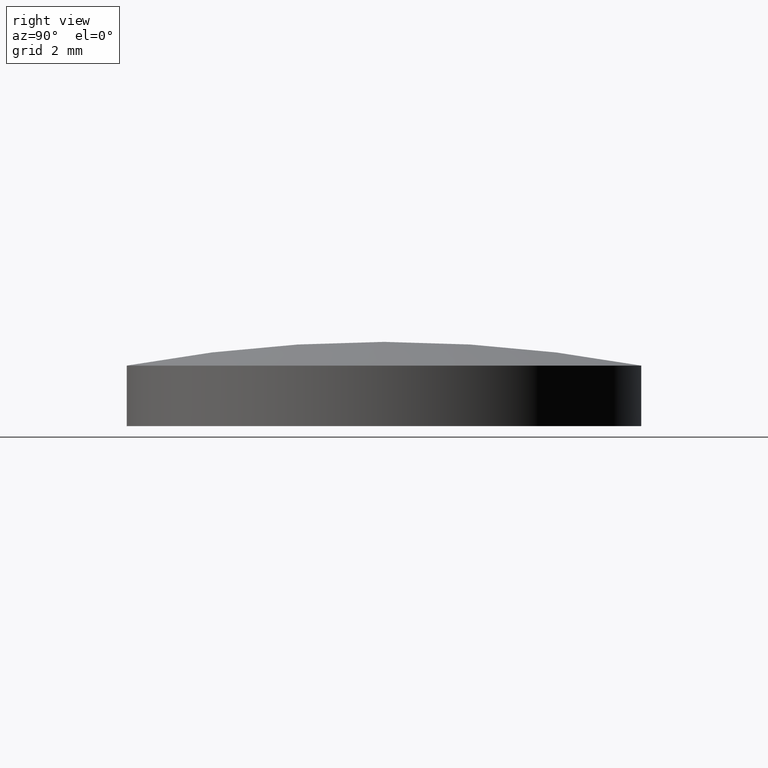
[diagram: clean part render]
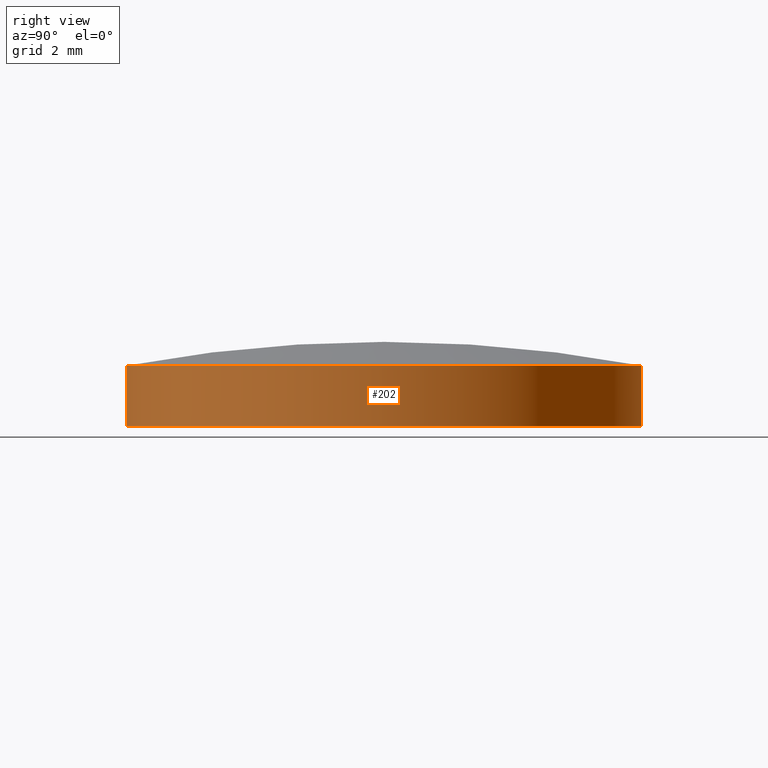
[diagram: same view with one face highlighted and labeled with its STEP entity id]
A machine part, right view. The second image highlights one B-rep face of the part: STEP entity #202.
In plain terms, the highlighted cylindrical surface (partial cylindrical patch) has radius 6.35 mm, axis along (-0, -0, 1).
Its self-contained STEP definition (entity closure, byte-faithful):
#27 = DIRECTION ( 'NONE',  ( -0.0000000000000000000, -1.836970198721029900E-016, 1.000000000000000000 ) ) ;
#28 = CARTESIAN_POINT ( 'NONE',  ( 0.0000000000000000000, -6.349999999999999600, 1.039999999999999100 ) ) ;
#29 = LINE ( 'NONE', #28, #35 ) ;
#30 = CARTESIAN_POINT ( 'NONE',  ( 7.776507174585691200E-016, 6.349999999999998800, 0.4542084157273885100 ) ) ;
#31 = CARTESIAN_POINT ( 'NONE',  ( 7.776507174585692200E-016, 6.349999999999999600, -1.040000000000000300 ) ) ;
#34 = CARTESIAN_POINT ( 'NONE',  ( 0.0000000000000000000, -6.349999999999999600, -1.040000000000002500 ) ) ;
#35 = VECTOR ( 'NONE', #27, 1000.000000000000000 ) ;
#41 = CARTESIAN_POINT ( 'NONE',  ( 0.0000000000000000000, -6.349999999999998800, 0.4542084157273861300 ) ) ;
#51 = AXIS2_PLACEMENT_3D ( 'NONE', #56, #60, #59 ) ;
#56 = CARTESIAN_POINT ( 'NONE',  ( 0.0000000000000000000, 3.820898013339744900E-016, -1.040000000000001400 ) ) ;
#57 = CIRCLE ( 'NONE', #51, 6.349999999999999600 ) ;
#59 = DIRECTION ( 'NONE',  ( 0.0000000000000000000, -1.000000000000000000, -1.707404996040164500E-016 ) ) ;
#60 = DIRECTION ( 'NONE',  ( -0.0000000000000000000, -1.836970198721029900E-016, 1.000000000000000000 ) ) ;
#102 = FACE_OUTER_BOUND ( 'NONE', #199, .T. ) ;
#112 = ORIENTED_EDGE ( 'NONE', *, *, #142, .T. ) ;
#113 = EDGE_CURVE ( 'NONE', #135, #137, #225, .T. ) ;
#114 = ORIENTED_EDGE ( 'NONE', *, *, #113, .T. ) ;
#127 = ORIENTED_EDGE ( 'NONE', *, *, #203, .F. ) ;
#133 = ORIENTED_EDGE ( 'NONE', *, *, #134, .F. ) ;
#134 = EDGE_CURVE ( 'NONE', #140, #138, #29, .T. ) ;
#135 = VERTEX_POINT ( 'NONE', #31 ) ;
#137 = VERTEX_POINT ( 'NONE', #30 ) ;
#138 = VERTEX_POINT ( 'NONE', #41 ) ;
#140 = VERTEX_POINT ( 'NONE', #34 ) ;
#142 = EDGE_CURVE ( 'NONE', #140, #135, #57, .T. ) ;
#145 = DIRECTION ( 'NONE',  ( 0.0000000000000000000, -1.000000000000000000, -1.707404996040164500E-016 ) ) ;
#146 = DIRECTION ( 'NONE',  ( -0.0000000000000000000, -1.836970198721029900E-016, 1.000000000000000000 ) ) ;
#147 = AXIS2_PLACEMENT_3D ( 'NONE', #175, #146, #145 ) ;
#148 = DIRECTION ( 'NONE',  ( -0.0000000000000000000, -1.836970198721029900E-016, 1.000000000000000000 ) ) ;
#156 = CYLINDRICAL_SURFACE ( 'NONE', #147, 6.349999999999999600 ) ;
#157 = CIRCLE ( 'NONE', #193, 6.349999999999998800 ) ;
#175 = CARTESIAN_POINT ( 'NONE',  ( 0.0000000000000000000, 0.0000000000000000000, 1.040000000000000000 ) ) ;
#176 = CARTESIAN_POINT ( 'NONE',  ( 0.0000000000000000000, 1.076081682970368500E-016, 0.4542084157273872900 ) ) ;
#192 = DIRECTION ( 'NONE',  ( 0.0000000000000000000, -1.000000000000000000, -1.878145495644181300E-016 ) ) ;
#193 = AXIS2_PLACEMENT_3D ( 'NONE', #176, #148, #192 ) ;
#199 = EDGE_LOOP ( 'NONE', ( #112, #114, #127, #133 ) ) ;
#202 = ADVANCED_FACE ( 'NONE', ( #102 ), #156, .T. ) ;
#203 = EDGE_CURVE ( 'NONE', #138, #137, #157, .T. ) ;
#222 = DIRECTION ( 'NONE',  ( -0.0000000000000000000, -1.836970198721029900E-016, 1.000000000000000000 ) ) ;
#223 = VECTOR ( 'NONE', #222, 1000.000000000000000 ) ;
#224 = CARTESIAN_POINT ( 'NONE',  ( 7.776507174585692200E-016, 6.349999999999999600, 1.040000000000001100 ) ) ;
#225 = LINE ( 'NONE', #224, #223 ) ;